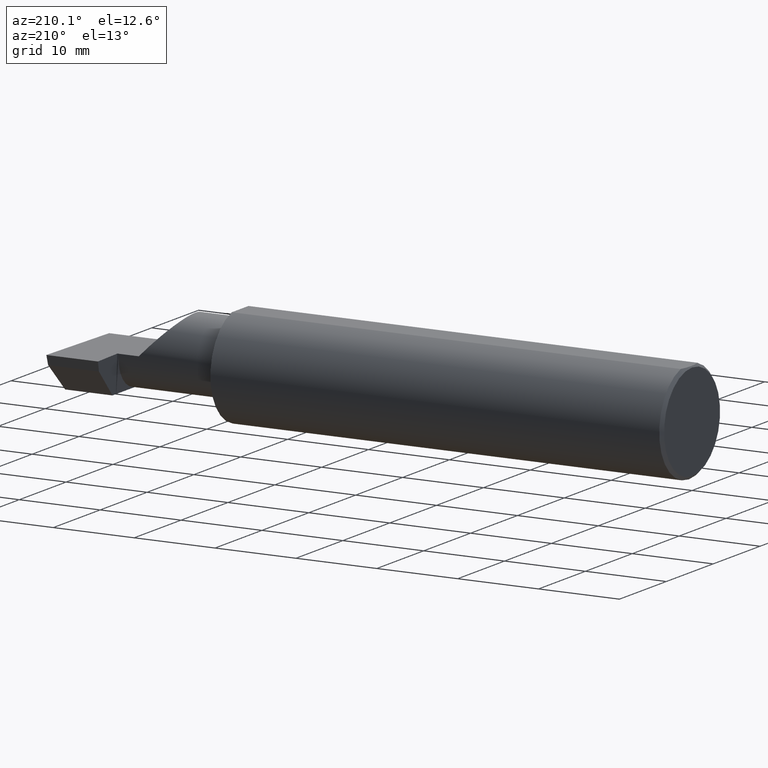
[diagram: clean part render]
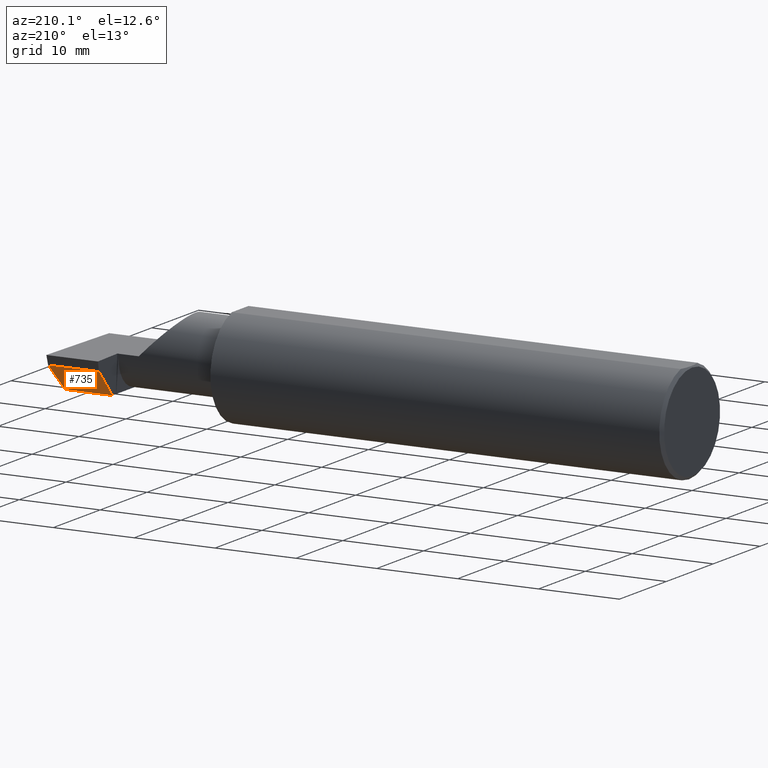
[diagram: same view with one face highlighted and labeled with its STEP entity id]
A machine part, auxiliary view. The second image highlights one B-rep face of the part: STEP entity #735.
In plain terms, the highlighted planar face has unit normal (0, -0.7071, 0.7071).
Its self-contained STEP definition (entity closure, byte-faithful):
#35 = CARTESIAN_POINT ( 'NONE',  ( 2.990479469570817894, 0.1058243371481679268, -0.1749999999999999889 ) ) ;
#50 = ORIENTED_EDGE ( 'NONE', *, *, #396, .T. ) ;
#55 = VERTEX_POINT ( 'NONE', #618 ) ;
#72 = LINE ( 'NONE', #328, #209 ) ;
#136 = DIRECTION ( 'NONE',  ( 1.000000000000000000, -0.000000000000000000, -0.000000000000000000 ) ) ;
#152 = DIRECTION ( 'NONE',  ( -0.04317993108637931121, -0.7064472710512011977, -0.7064472710511988662 ) ) ;
#209 = VECTOR ( 'NONE', #445, 39.37007874015748143 ) ;
#218 = CARTESIAN_POINT ( 'NONE',  ( 2.725000000000000089, 0.2348243371481683328, -0.04599999999999999922 ) ) ;
#245 = EDGE_CURVE ( 'NONE', #55, #311, #281, .T. ) ;
#249 = ORIENTED_EDGE ( 'NONE', *, *, #571, .T. ) ;
#254 = ORIENTED_EDGE ( 'NONE', *, *, #348, .T. ) ;
#281 = LINE ( 'NONE', #449, #546 ) ;
#311 = VERTEX_POINT ( 'NONE', #35 ) ;
#328 = CARTESIAN_POINT ( 'NONE',  ( 2.750974143662802796, 0.2357313737265644971, -0.04509296342160385579 ) ) ;
#333 = CARTESIAN_POINT ( 'NONE',  ( 2.997854602263704482, 0.2264855386240996193, -0.05433879852406866412 ) ) ;
#335 = DIRECTION ( 'NONE',  ( 0.000000000000000000, -0.7071067811865463515, 0.7071067811865486830 ) ) ;
#345 = AXIS2_PLACEMENT_3D ( 'NONE', #218, #335, #775 ) ;
#348 = EDGE_CURVE ( 'NONE', #516, #311, #582, .T. ) ;
#370 = CARTESIAN_POINT ( 'NONE',  ( 2.998364291748492949, 0.2348243371481683328, -0.04600000000000000616 ) ) ;
#373 = VECTOR ( 'NONE', #152, 39.37007874015748854 ) ;
#396 = EDGE_CURVE ( 'NONE', #55, #463, #72, .T. ) ;
#445 = DIRECTION ( 'NONE',  ( -0.04932528479609230021, 0.7062460676987121211, 0.7062460676987097896 ) ) ;
#449 = CARTESIAN_POINT ( 'NONE',  ( 3.000000000000000444, 0.1058243371481678713, -0.1750000000000000167 ) ) ;
#463 = VERTEX_POINT ( 'NONE', #716 ) ;
#497 = LINE ( 'NONE', #557, #662 ) ;
#516 = VERTEX_POINT ( 'NONE', #370 ) ;
#523 = PLANE ( 'NONE',  #345 ) ;
#546 = VECTOR ( 'NONE', #696, 39.37007874015748143 ) ;
#557 = CARTESIAN_POINT ( 'NONE',  ( 2.725000000000000089, 0.2348243371481683328, -0.04599999999999999922 ) ) ;
#571 = EDGE_CURVE ( 'NONE', #463, #516, #497, .T. ) ;
#582 = LINE ( 'NONE', #333, #373 ) ;
#618 = CARTESIAN_POINT ( 'NONE',  ( 2.760047045968828883, 0.1058243371481679407, -0.1749999999999999889 ) ) ;
#662 = VECTOR ( 'NONE', #136, 39.37007874015748143 ) ;
#696 = DIRECTION ( 'NONE',  ( 1.000000000000000000, 0.000000000000000000, 0.000000000000000000 ) ) ;
#716 = CARTESIAN_POINT ( 'NONE',  ( 2.751037492458068279, 0.2348243371481683328, -0.04599999999999999922 ) ) ;
#735 = ADVANCED_FACE ( 'NONE', ( #761 ), #523, .F. ) ;
#758 = ORIENTED_EDGE ( 'NONE', *, *, #245, .F. ) ;
#761 = FACE_OUTER_BOUND ( 'NONE', #777, .T. ) ;
#775 = DIRECTION ( 'NONE',  ( 0.000000000000000000, -0.7071067811865486830, -0.7071067811865463515 ) ) ;
#777 = EDGE_LOOP ( 'NONE', ( #249, #254, #758, #50 ) ) ;